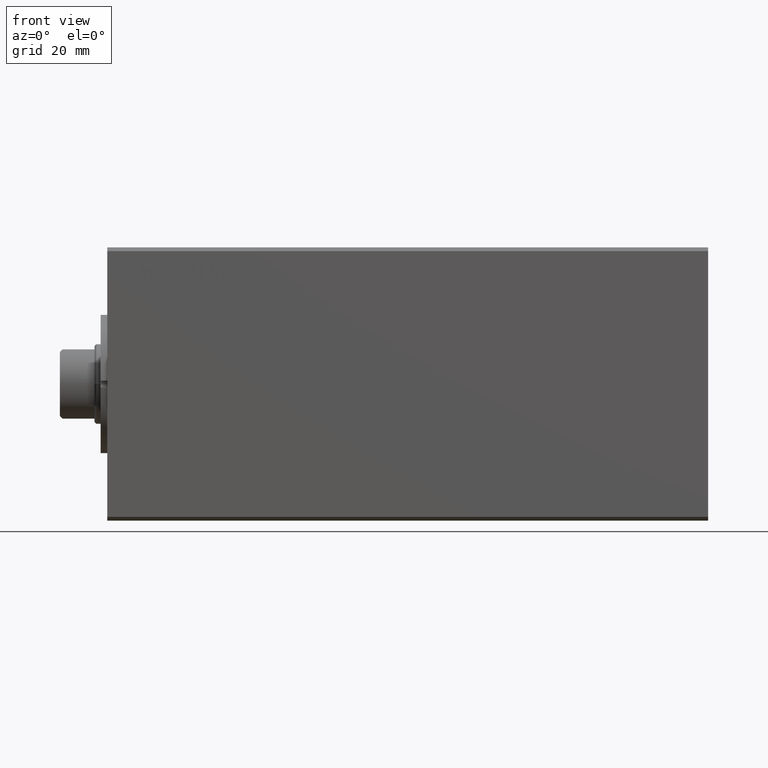
[diagram: clean part render]
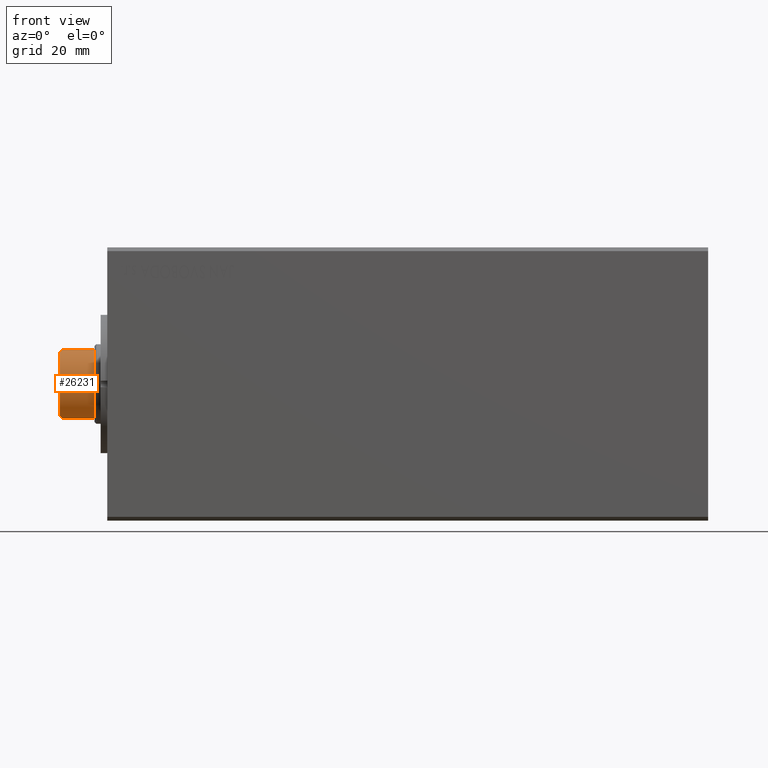
[diagram: same view with one face highlighted and labeled with its STEP entity id]
A machine part, front view. The second image highlights one B-rep face of the part: STEP entity #26231.
In plain terms, the highlighted cylindrical surface (partial cylindrical patch) has radius 10.46 mm, axis along (-1, 0, 0).
Its self-contained STEP definition (entity closure, byte-faithful):
#215 = ORIENTED_EDGE ( 'NONE', *, *, #27652, .T. ) ;
#1212 = CARTESIAN_POINT ( 'NONE',  ( 9.500000000000000000, 4.377396486497401540, 138.4999999999999432 ) ) ;
#1216 = CARTESIAN_POINT ( 'NONE',  ( -9.293949384395538971, 4.824575729748599606, 147.4960506156044460 ) ) ;
#1899 = CARTESIAN_POINT ( 'NONE',  ( 9.056889589612559632, 5.256118063110169381, 147.7331104103874111 ) ) ;
#2209 = VERTEX_POINT ( 'NONE', #22457 ) ;
#2678 = ORIENTED_EDGE ( 'NONE', *, *, #37934, .T. ) ;
#2723 = ORIENTED_EDGE ( 'NONE', *, *, #18250, .T. ) ;
#5448 = CARTESIAN_POINT ( 'NONE',  ( -9.056889589612561409, 5.256118063110166716, 147.7331104103874111 ) ) ;
#6992 = EDGE_CURVE ( 'NONE', #15327, #2209, #30427, .T. ) ;
#7773 = EDGE_CURVE ( 'NONE', #9524, #10436, #36969, .T. ) ;
#8304 = AXIS2_PLACEMENT_3D ( 'NONE', #17590, #27854, #41472 ) ;
#8502 = DIRECTION ( 'NONE',  ( -0.000000000000000000, -1.817376075630682537E-16, 1.000000000000000000 ) ) ;
#8621 = AXIS2_PLACEMENT_3D ( 'NONE', #35105, #8502, #22143 ) ;
#9524 = VERTEX_POINT ( 'NONE', #22582 ) ;
#10436 = VERTEX_POINT ( 'NONE', #32507 ) ;
#10707 = ORIENTED_EDGE ( 'NONE', *, *, #7773, .T. ) ;
#12825 = VECTOR ( 'NONE', #14348, 1000.000000000000000 ) ;
#13602 = EDGE_CURVE ( 'NONE', #10436, #14876, #33549, .T. ) ;
#13770 = VECTOR ( 'NONE', #41135, 1000.000000000000000 ) ;
#13911 = LINE ( 'NONE', #17271, #12825 ) ;
#14114 = CARTESIAN_POINT ( 'NONE',  ( 0.000000000000000000, -2.689716591933410036E-14, 148.0000000000000000 ) ) ;
#14348 = DIRECTION ( 'NONE',  ( 0.000000000000000000, 1.817376075630682537E-16, -1.000000000000000000 ) ) ;
#14876 = VERTEX_POINT ( 'NONE', #23914 ) ;
#15267 = CARTESIAN_POINT ( 'NONE',  ( -9.500000000000000000, 4.377396486497399763, 147.2899999999999636 ) ) ;
#15327 = VERTEX_POINT ( 'NONE', #19512 ) ;
#15847 = CARTESIAN_POINT ( 'NONE',  ( 9.500000000000000000, 4.377396486497399763, 147.2899999999999636 ) ) ;
#17271 = CARTESIAN_POINT ( 'NONE',  ( 9.500000000000000000, 4.377396486497399763, 148.0000000000000000 ) ) ;
#17590 = CARTESIAN_POINT ( 'NONE',  ( 0.000000000000000000, -2.689716591933410036E-14, 148.0000000000000000 ) ) ;
#17998 = CARTESIAN_POINT ( 'NONE',  ( 9.293949384395537194, 4.824575729748601383, 147.4960506156044460 ) ) ;
#18250 = EDGE_CURVE ( 'NONE', #15327, #32220, #40059, .T. ) ;
#18411 = AXIS2_PLACEMENT_3D ( 'NONE', #38813, #34818, #31243 ) ;
#19512 = CARTESIAN_POINT ( 'NONE',  ( 8.790000000000011582, 5.669876541865749964, 148.0000000000000000 ) ) ;
#20110 = ORIENTED_EDGE ( 'NONE', *, *, #21469, .T. ) ;
#21469 = EDGE_CURVE ( 'NONE', #32220, #36183, #13911, .T. ) ;
#22143 = DIRECTION ( 'NONE',  ( 0.000000000000000000, -1.000000000000000000, 0.000000000000000000 ) ) ;
#22457 = CARTESIAN_POINT ( 'NONE',  ( -8.790000000000011582, 5.669876541865749964, 148.0000000000000000 ) ) ;
#22582 = CARTESIAN_POINT ( 'NONE',  ( 0.000000000000000000, 10.45999999999997598, 138.4999999999999716 ) ) ;
#23448 = EDGE_LOOP ( 'NONE', ( #34196, #2723, #20110, #2678, #10707, #33525, #215 ) ) ;
#23863 = FACE_OUTER_BOUND ( 'NONE', #23448, .T. ) ;
#23914 = CARTESIAN_POINT ( 'NONE',  ( -9.500000000000000000, 4.377396486497399763, 147.2899999999999636 ) ) ;
#24903 = CARTESIAN_POINT ( 'NONE',  ( -8.790000000000011582, 5.669876541865749964, 148.0000000000000000 ) ) ;
#26231 = ADVANCED_FACE ( 'NONE', ( #23863 ), #37475, .T. ) ;
#27652 = EDGE_CURVE ( 'NONE', #14876, #2209, #36942, .T. ) ;
#27740 = DIRECTION ( 'NONE',  ( -0.000000000000000000, -1.817376075630682537E-16, 1.000000000000000000 ) ) ;
#27854 = DIRECTION ( 'NONE',  ( -0.000000000000000000, -1.817376075630682537E-16, 1.000000000000000000 ) ) ;
#28919 = CARTESIAN_POINT ( 'NONE',  ( 9.500000000000000000, 4.377396486497399763, 147.2899999999999636 ) ) ;
#30427 = CIRCLE ( 'NONE', #43973, 10.46000000000000085 ) ;
#31243 = DIRECTION ( 'NONE',  ( 0.000000000000000000, -1.000000000000000000, 0.000000000000000000 ) ) ;
#32220 = VERTEX_POINT ( 'NONE', #15847 ) ;
#32507 = CARTESIAN_POINT ( 'NONE',  ( -9.500000000000000000, 4.377396486497401540, 138.4999999999999432 ) ) ;
#33525 = ORIENTED_EDGE ( 'NONE', *, *, #13602, .T. ) ;
#33549 = LINE ( 'NONE', #44042, #13770 ) ;
#34196 = ORIENTED_EDGE ( 'NONE', *, *, #6992, .F. ) ;
#34818 = DIRECTION ( 'NONE',  ( -0.000000000000000000, -1.817376075630682537E-16, 1.000000000000000000 ) ) ;
#35105 = CARTESIAN_POINT ( 'NONE',  ( 0.000000000000000000, -2.517065864748495180E-14, 138.4999999999999716 ) ) ;
#36183 = VERTEX_POINT ( 'NONE', #1212 ) ;
#36942 =( BOUNDED_CURVE ( )  B_SPLINE_CURVE ( 3, ( #15267, #1216, #5448, #24903 ),
 .UNSPECIFIED., .F., .F. ) 
 B_SPLINE_CURVE_WITH_KNOTS ( ( 4, 4 ),
 ( 3.573373807102884214, 3.714471135698165227 ),
 .UNSPECIFIED. ) 
 CURVE ( )  GEOMETRIC_REPRESENTATION_ITEM ( )  RATIONAL_B_SPLINE_CURVE ( ( 1.000000000000000000, 0.9983416499762385321, 0.9983416499762385321, 1.000000000000000000 ) ) 
 REPRESENTATION_ITEM ( '' )  );
#36969 = CIRCLE ( 'NONE', #18411, 10.46000000000000263 ) ;
#37475 = CYLINDRICAL_SURFACE ( 'NONE', #8304, 10.46000000000000085 ) ;
#37934 = EDGE_CURVE ( 'NONE', #36183, #9524, #41440, .T. ) ;
#38536 = CARTESIAN_POINT ( 'NONE',  ( 8.790000000000011582, 5.669876541865749964, 148.0000000000000000 ) ) ;
#38813 = CARTESIAN_POINT ( 'NONE',  ( 0.000000000000000000, -2.517065864748495180E-14, 138.4999999999999716 ) ) ;
#40059 =( BOUNDED_CURVE ( )  B_SPLINE_CURVE ( 3, ( #38536, #1899, #17998, #28919 ),
 .UNSPECIFIED., .F., .F. ) 
 B_SPLINE_CURVE_WITH_KNOTS ( ( 4, 4 ),
 ( 2.568714171481421005, 2.709811500076702018 ),
 .UNSPECIFIED. ) 
 CURVE ( )  GEOMETRIC_REPRESENTATION_ITEM ( )  RATIONAL_B_SPLINE_CURVE ( ( 1.000000000000000000, 0.9983416499762385321, 0.9983416499762385321, 1.000000000000000000 ) ) 
 REPRESENTATION_ITEM ( '' )  );
#41135 = DIRECTION ( 'NONE',  ( -0.000000000000000000, -1.817376075630682537E-16, 1.000000000000000000 ) ) ;
#41440 = CIRCLE ( 'NONE', #8621, 10.46000000000000263 ) ;
#41472 = DIRECTION ( 'NONE',  ( 0.000000000000000000, -1.000000000000000000, 0.000000000000000000 ) ) ;
#42226 = DIRECTION ( 'NONE',  ( 0.000000000000000000, -1.000000000000000000, 0.000000000000000000 ) ) ;
#43973 = AXIS2_PLACEMENT_3D ( 'NONE', #14114, #27740, #42226 ) ;
#44042 = CARTESIAN_POINT ( 'NONE',  ( -9.500000000000000000, 4.377396486497399763, 148.0000000000000000 ) ) ;